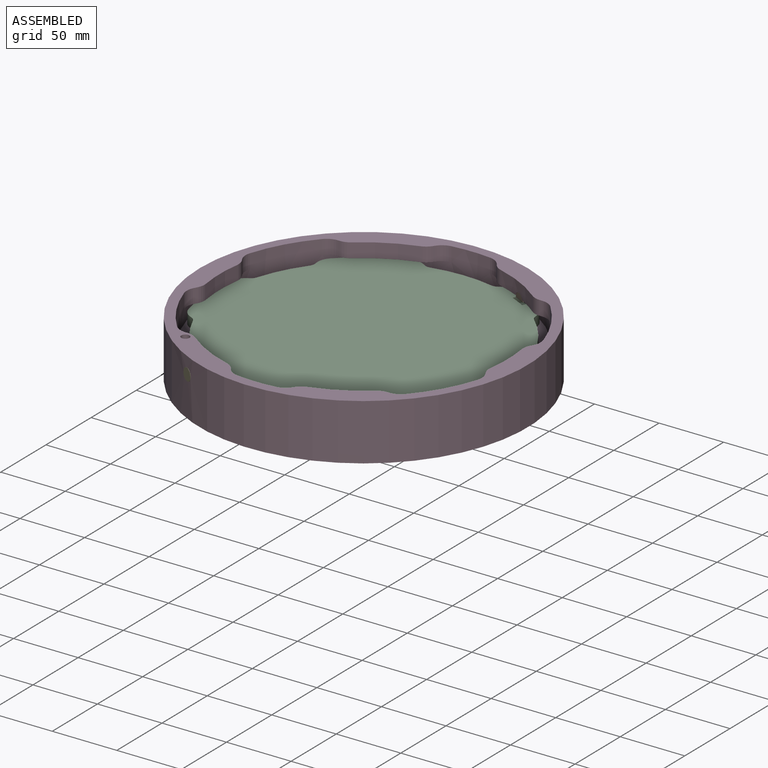
[diagram: assembled view]
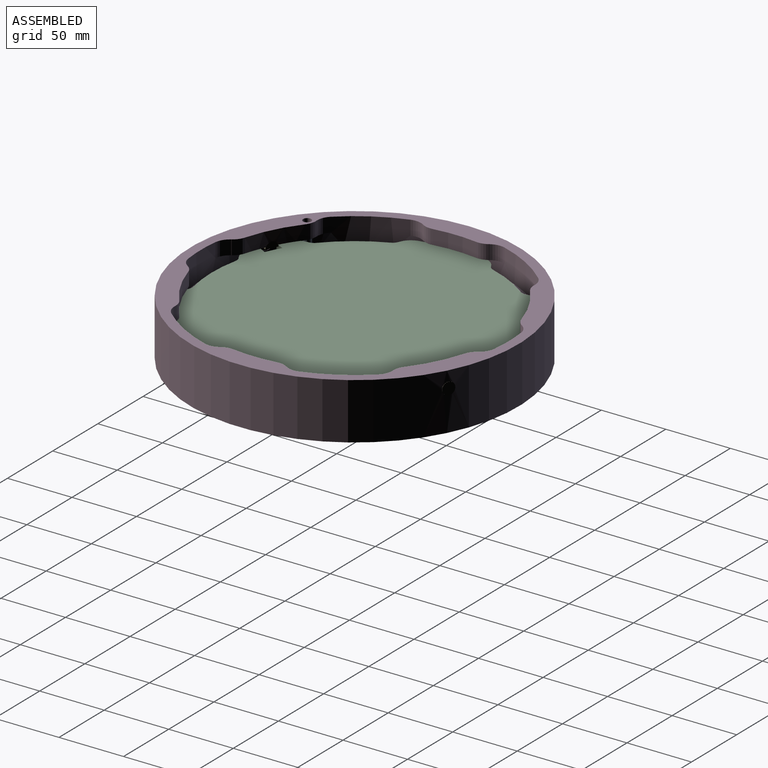
[diagram: assembled view, second angle]
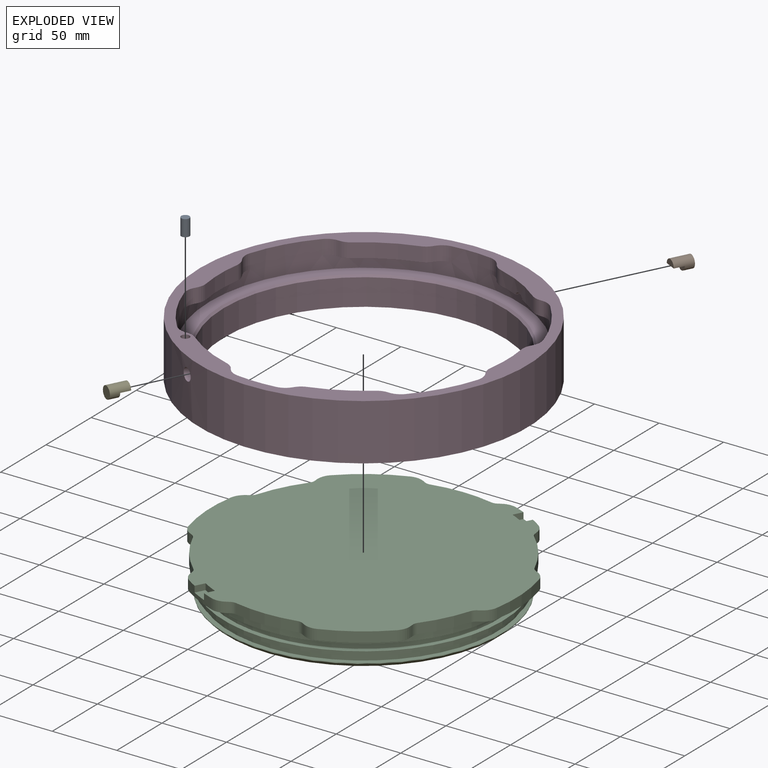
[diagram: exploded view]
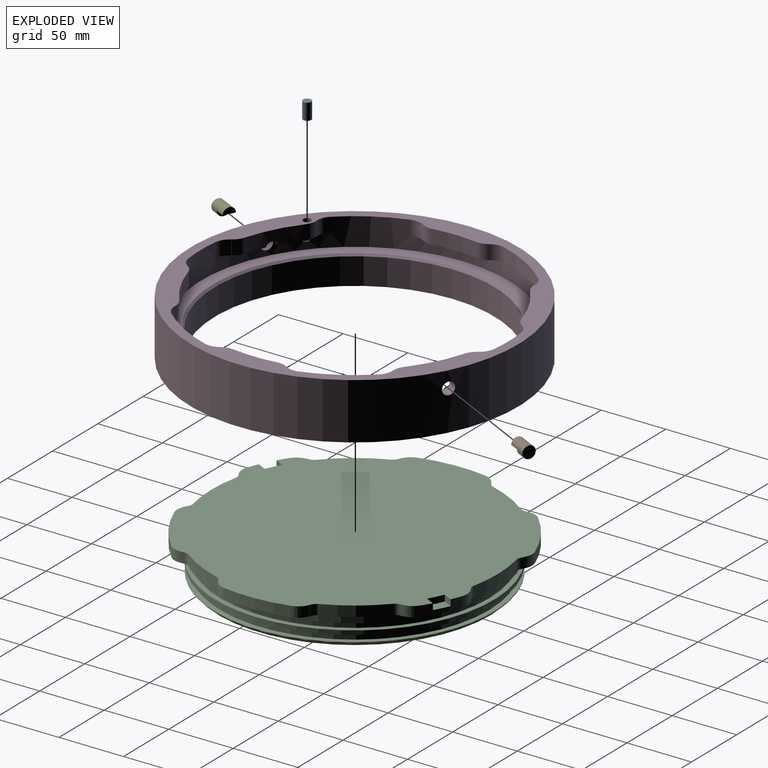
[diagram: exploded view, second angle]
ASSEMBLY  parts=5 mates=5
PART A: 3 faces, bbox 6.4x6.4x12.7 mm
  f0: cylinder r=3.17mm len=12.7mm, axis (0,0,-1), area 253.4mm2, adj f1,f2
  f1: plane 6.35x6.35mm, normal (0,0,1), area 31.7mm2, adj f0
  f2: plane 6.35x6.35mm, normal (0,0,-1), area 31.7mm2, adj f0
PART B: 5 faces, bbox 9.5x9.5x15.2 mm
  f0: cylinder r=4.76mm len=15.24mm, axis (0,0,-1), area 338.2mm2, adj f1,f2,f3,f4
  f1: plane 9.53x4.76mm, normal (0,0,1), area 35.6mm2, adj f0,f4
  f2: plane 9.53x9.53mm, normal (0,0,-1), area 71.3mm2, adj f0
  f3: plane 9.53x4.76mm, normal (0,0,1), area 35.6mm2, adj f0,f4
  f4: plane 9.53x7.87mm, normal (1,0,0), area 75mm2, adj f0,f1,f3
PART C: 71 faces, bbox 226.6x236.5x30.2 mm
  f0: plane 236.18x226.6mm, normal (0,0,1), area 41085.8mm2, adj f1,f2,f3,f4,f5,f19,f21,f22
  f1: cylinder r=118.26mm len=43.84mm, axis (0,0,-1), area 405mm2, adj f0,f18,f52,f54
  f2: cylinder r=118.26mm len=30.3mm, axis (0,0,-1), area 180.6mm2, adj f0,f18,f53,f55,f64,f65,f66
  f3: cylinder r=118.26mm len=43.84mm, axis (0,0,-1), area 405mm2, adj f0,f18,f56,f58
  f4: cylinder r=118.26mm len=43.84mm, axis (0,0,-1), area 405mm2, adj f0,f18,f57,f59
  f5: cylinder r=118.26mm len=30.3mm, axis (0,0,-1), area 180.6mm2, adj f0,f18,f60,f61,f67,f69,f70
  f6: plane 193.68x193.68mm, normal (0,0,-1), area 29460.3mm2, adj f7
  f7: cylinder r=96.84mm len=193.68mm, axis (0,0,-1), area 13522.8mm2, adj f6,f8
  f8: plane 210.82x210.82mm, normal (0,0,-1), area 5446.8mm2, adj f7,f20
  f9: cylinder r=107.95mm len=215.9mm, axis (0,0,-1), area 430.7mm2, adj f10,f20
  f10: plane 215.9x215.9mm, normal (0,0,1), area 2538.6mm2, adj f9,f11
  f11: cylinder r=104.14mm len=208.28mm, axis (0,0,-1), area 3324mm2, adj f10,f12
  f12: plane 215.9x215.9mm, normal (0,0,-1), area 2538.6mm2, adj f11,f13
  f13: cylinder r=107.95mm len=215.9mm, axis (0,0,-1), area 2153.5mm2, adj f12,f14
  f14: plane 215.9x215.9mm, normal (0,0,1), area 2538.6mm2, adj f13,f15
  f15: cylinder r=104.14mm len=208.28mm, axis (0,0,-1), area 3324mm2, adj f14,f16
  f16: plane 215.9x215.9mm, normal (0,0,-1), area 2538.6mm2, adj f15,f17
  f17: cylinder r=107.95mm len=215.9mm, axis (0,0,-1), area 3876.3mm2, adj f16,f18
  f18: plane 236.53x226.6mm, normal (0,0,-1), area 4676.3mm2, adj f1,f2,f3,f4,f5,f17,f19,f21
  f19: cylinder r=118.26mm len=43.84mm, axis (0,0,-1), area 405mm2, adj f0,f18,f51,f62
  f20: cone r=105.41mm half-angle=45deg, axis (0,0,1), area 2407.8mm2, adj f8,f9
  f21: plane 7.94x2.41mm, normal (0.03,1,0), area 19.1mm2, adj f0,f18,f50,f62
  f22: cylinder r=110.82mm len=41.73mm, axis (0,0,1), area 376.3mm2, adj f0,f18,f49,f50
  f23: plane 7.94x2.02mm, normal (-0.84,0.54,0), area 19.1mm2, adj f0,f18,f49,f61
  f24: plane 7.94x2.41mm, normal (-0.03,1,0), area 19.1mm2, adj f0,f18,f47,f59
  f25: cylinder r=110.82mm len=41.73mm, axis (0,0,1), area 376.3mm2, adj f0,f18,f47,f48
  f26: plane 7.94x2.02mm, normal (0.84,0.54,0), area 19.1mm2, adj f0,f18,f48,f60
  f27: plane 7.94x2.04mm, normal (0.85,0.53,0), area 19.1mm2, adj f0,f18,f46,f58
  f28: plane 7.94x2.04mm, normal (0.85,-0.53,0), area 19.1mm2, adj f0,f18,f45,f57
  f29: cylinder r=110.82mm len=37.56mm, axis (0,0,1), area 299.5mm2, adj f0,f18,f45,f46
  f30: plane 7.94x2.41mm, normal (-0.03,-1,0), area 19.1mm2, adj f0,f18,f44,f56
  f31: cylinder r=110.82mm len=41.73mm, axis (0,0,1), area 376.3mm2, adj f0,f18,f43,f44
  f32: plane 7.94x2.02mm, normal (0.84,-0.54,0), area 19.1mm2, adj f0,f18,f43,f55
  f33: plane 7.94x2.41mm, normal (0.03,-1,0), area 19.1mm2, adj f0,f18,f42,f54
  f34: cylinder r=110.82mm len=41.73mm, axis (0,0,1), area 376.3mm2, adj f0,f18,f41,f42
  f35: plane 7.94x2.02mm, normal (-0.84,-0.54,0), area 19.1mm2, adj f0,f18,f41,f53
  f36: plane 7.94x2.04mm, normal (-0.85,0.53,0), area 19.1mm2, adj f0,f18,f40,f52
  f37: plane 7.94x2.04mm, normal (-0.85,-0.53,0), area 19.1mm2, adj f0,f18,f39,f51
  f38: cylinder r=110.82mm len=37.56mm, axis (0,0,1), area 299.5mm2, adj f0,f18,f39,f40
  f39: cylinder r=6.35mm len=7.94mm, axis (0,0,1), area 36.7mm2, adj f0,f18,f37,f38
  f40: cylinder r=6.35mm len=7.94mm, axis (0,0,1), area 36.7mm2, adj f0,f18,f36,f38
  f41: cylinder r=6.35mm len=7.94mm, axis (0,0,1), area 36.7mm2, adj f0,f18,f34,f35
  f42: cylinder r=6.35mm len=7.94mm, axis (0,0,1), area 36.7mm2, adj f0,f18,f33,f34
  f43: cylinder r=6.35mm len=7.94mm, axis (0,0,1), area 36.7mm2, adj f0,f18,f31,f32
  f44: cylinder r=6.35mm len=7.94mm, axis (0,0,1), area 36.7mm2, adj f0,f18,f30,f31
  f45: cylinder r=6.35mm len=7.94mm, axis (0,0,1), area 36.7mm2, adj f0,f18,f28,f29
  f46: cylinder r=6.35mm len=7.94mm, axis (0,0,1), area 36.7mm2, adj f0,f18,f27,f29
  f47: cylinder r=6.35mm len=7.94mm, axis (0,0,1), area 36.7mm2, adj f0,f18,f24,f25
  f48: cylinder r=6.35mm len=7.94mm, axis (0,0,1), area 36.7mm2, adj f0,f18,f25,f26
  f49: cylinder r=6.35mm len=7.94mm, axis (0,0,1), area 36.7mm2, adj f0,f18,f22,f23
  f50: cylinder r=6.35mm len=7.94mm, axis (0,0,1), area 36.7mm2, adj f0,f18,f21,f22
  f51: cylinder r=12.7mm len=10.58mm, axis (0,0,-1), area 87.3mm2, adj f0,f18,f19,f37
  f52: cylinder r=12.7mm len=10.58mm, axis (0,0,-1), area 87.3mm2, adj f0,f1,f18,f36
  f53: cylinder r=12.7mm len=9.03mm, axis (0,0,-1), area 87.3mm2, adj f0,f2,f18,f35
  f54: cylinder r=12.7mm len=9.83mm, axis (0,0,-1), area 87.3mm2, adj f0,f1,f18,f33
  f55: cylinder r=12.7mm len=9.03mm, axis (0,0,-1), area 87.3mm2, adj f0,f2,f18,f32
  f56: cylinder r=12.7mm len=9.83mm, axis (0,0,-1), area 87.3mm2, adj f0,f3,f18,f30
  f57: cylinder r=12.7mm len=10.58mm, axis (0,0,-1), area 87.3mm2, adj f0,f4,f18,f28
  f58: cylinder r=12.7mm len=10.58mm, axis (0,0,-1), area 87.3mm2, adj f0,f3,f18,f27
  f59: cylinder r=12.7mm len=9.83mm, axis (0,0,-1), area 87.3mm2, adj f0,f4,f18,f24
  f60: cylinder r=12.7mm len=9.03mm, axis (0,0,-1), area 87.3mm2, adj f0,f5,f18,f26
  f61: cylinder r=12.7mm len=9.03mm, axis (0,0,-1), area 87.3mm2, adj f0,f5,f18,f23
  f62: cylinder r=12.7mm len=9.83mm, axis (0,0,-1), area 87.3mm2, adj f0,f18,f19,f21
  f63: cylinder r=110.39mm len=12.7mm, axis (0,0,1), area 60.5mm2, adj f0,f64,f65,f66
  f64: plane 7.89x4.76mm, normal (1,0,0), area 37.6mm2, adj f0,f2,f63,f66
  f65: plane 7.89x4.76mm, normal (-1,0,0), area 37.6mm2, adj f0,f2,f63,f66
  f66: plane 12.7x8.06mm, normal (0,0,1), area 100.1mm2, adj f2,f63,f64,f65
  f67: plane 7.89x4.76mm, normal (1,0,0), area 37.6mm2, adj f0,f5,f68,f70
  f68: cylinder r=110.39mm len=12.7mm, axis (0,0,1), area 60.5mm2, adj f0,f67,f69,f70
  f69: plane 7.89x4.76mm, normal (-1,0,0), area 37.6mm2, adj f0,f5,f68,f70
  f70: plane 12.7x8.06mm, normal (0,0,1), area 100.1mm2, adj f5,f67,f68,f69
PART D: 61 faces, bbox 254x254x43.7 mm
  f0: plane 35.13x17.06mm, normal (0,0,-1), area 203.2mm2, adj f3,f18,f21,f44,f55,f58
  f1: plane 33.78x24.01mm, normal (0,0,-1), area 218.9mm2, adj f10,f18,f28,f37,f50,f57
  f2: cylinder r=111.57mm len=38.22mm, axis (0,0,-1), area 481.9mm2, adj f4,f9,f53,f54
  f3: cylinder r=111.57mm len=38.22mm, axis (0,0,-1), area 461.1mm2, adj f0,f5,f9,f55,f56,f58
  f4: plane 73.36x38.19mm, normal (0,0,-1), area 492.3mm2, adj f2,f18,f22,f31,f34,f43,f53,f54
  f5: plane 33.78x24.01mm, normal (0,0,-1), area 190.3mm2, adj f3,f18,f25,f40,f56,f58,f59
  f6: cylinder r=111.57mm len=38.22mm, axis (0,0,-1), area 481.9mm2, adj f7,f9,f51,f52
  f7: plane 73.36x38.19mm, normal (0,0,-1), area 492.3mm2, adj f6,f18,f23,f32,f33,f42,f51,f52
  f8: plane 35.13x17.06mm, normal (0,0,-1), area 203.2mm2, adj f10,f18,f24,f41,f49,f57
  f9: plane 254x254mm, normal (0,0,1), area 8662.5mm2, adj f2,f3,f6,f10,f11,f16,f17,f18
  f10: cylinder r=111.57mm len=38.22mm, axis (0,0,-1), area 461.1mm2, adj f1,f8,f9,f49,f50,f57
  f11: cylinder r=111.57mm len=33.5mm, axis (0,0,-1), area 373.7mm2, adj f9,f13,f47,f48
  f12: plane 72.85x9.22mm, normal (0,0,-1), area 413.6mm2, adj f17,f18,f29,f30,f35,f36,f45,f46
  f13: plane 72.85x9.22mm, normal (0,0,-1), area 413.6mm2, adj f11,f18,f26,f27,f38,f39,f47,f48
  f14: cylinder r=108.33mm len=216.66mm, axis (0,0,-1), area 14090.4mm2, adj f15,f20
  f15: plane 254x254mm, normal (0,0,-1), area 13802.3mm2, adj f14,f16
  f16: cylinder r=127mm len=254mm, axis (0,0,-1), area 34687.7mm2, adj f9,f15,f57,f58
  f17: cylinder r=111.57mm len=33.5mm, axis (0,0,-1), area 373.7mm2, adj f9,f12,f45,f46
  f18: cylinder r=119.38mm len=238.76mm, axis (0,0,-1), area 10549mm2, adj f0,f1,f4,f5,f7,f8,f9,f12
  f19: plane 238.76x238.76mm, normal (0,0,1), area 6859.6mm2, adj f18,f20
  f20: cone r=109.85mm half-angle=45deg, axis (0,0,1), area 1477.3mm2, adj f14,f19
  f21: plane 11.11x0.43mm, normal (0.84,0.54,0), area 5.7mm2, adj f0,f9,f44,f55
  f22: plane 11.11x0.43mm, normal (-0.84,0.54,0), area 5.7mm2, adj f4,f9,f43,f53
  f23: plane 11.11x0.43mm, normal (0.84,-0.54,0), area 5.7mm2, adj f7,f9,f42,f51
  f24: plane 11.11x0.43mm, normal (-0.84,-0.54,0), area 5.7mm2, adj f8,f9,f41,f49
  f25: plane 11.11x0.51mm, normal (-0.03,1,0), area 5.7mm2, adj f5,f9,f40,f56
  f26: plane 11.11x0.43mm, normal (0.85,-0.53,0), area 5.7mm2, adj f9,f13,f39,f47
  f27: plane 11.11x0.43mm, normal (0.85,0.53,0), area 5.7mm2, adj f9,f13,f38,f48
  f28: plane 11.11x0.51mm, normal (0.03,-1,0), area 5.7mm2, adj f1,f9,f37,f50
  f29: plane 11.11x0.43mm, normal (-0.85,0.53,0), area 5.7mm2, adj f9,f12,f36,f45
  f30: plane 11.11x0.43mm, normal (-0.85,-0.53,0), area 5.7mm2, adj f9,f12,f35,f46
  f31: plane 11.11x0.51mm, normal (0.03,1,0), area 5.7mm2, adj f4,f9,f34,f54
  f32: plane 11.11x0.51mm, normal (-0.03,-1,0), area 5.7mm2, adj f7,f9,f33,f52
  f33: cylinder r=12.7mm len=11.11mm, axis (0,0,-1), area 122.6mm2, adj f7,f9,f18,f32
  f34: cylinder r=12.7mm len=11.11mm, axis (0,0,-1), area 122.6mm2, adj f4,f9,f18,f31
  f35: cylinder r=12.7mm len=11.11mm, axis (0,0,-1), area 122.6mm2, adj f9,f12,f18,f30
  f36: cylinder r=12.7mm len=11.11mm, axis (0,0,-1), area 122.6mm2, adj f9,f12,f18,f29
  f37: cylinder r=12.7mm len=11.11mm, axis (0,0,-1), area 122.6mm2, adj f1,f9,f18,f28
  f38: cylinder r=12.7mm len=11.11mm, axis (0,0,-1), area 122.6mm2, adj f9,f13,f18,f27
  f39: cylinder r=12.7mm len=11.11mm, axis (0,0,-1), area 122.6mm2, adj f9,f13,f18,f26
  f40: cylinder r=12.7mm len=11.11mm, axis (0,0,-1), area 122.6mm2, adj f5,f9,f18,f25
  f41: cylinder r=12.7mm len=11.11mm, axis (0,0,-1), area 122.6mm2, adj f8,f9,f18,f24
  f42: cylinder r=12.7mm len=11.11mm, axis (0,0,-1), area 122.6mm2, adj f7,f9,f18,f23
  f43: cylinder r=12.7mm len=11.11mm, axis (0,0,-1), area 122.6mm2, adj f4,f9,f18,f22
  f44: cylinder r=12.7mm len=11.11mm, axis (0,0,-1), area 122.6mm2, adj f0,f9,f18,f21
  f45: cylinder r=12.7mm len=11.11mm, axis (0,0,-1), area 100.1mm2, adj f9,f12,f17,f29
  f46: cylinder r=12.7mm len=11.11mm, axis (0,0,-1), area 100.1mm2, adj f9,f12,f17,f30
  f47: cylinder r=12.7mm len=11.11mm, axis (0,0,-1), area 100.1mm2, adj f9,f11,f13,f26
  f48: cylinder r=12.7mm len=11.11mm, axis (0,0,-1), area 100.1mm2, adj f9,f11,f13,f27
  f49: cylinder r=12.7mm len=11.11mm, axis (0,0,-1), area 100.1mm2, adj f8,f9,f10,f24
  f50: cylinder r=12.7mm len=11.11mm, axis (0,0,-1), area 100.1mm2, adj f1,f9,f10,f28
  f51: cylinder r=12.7mm len=11.11mm, axis (0,0,-1), area 100.1mm2, adj f6,f7,f9,f23
  f52: cylinder r=12.7mm len=11.11mm, axis (0,0,-1), area 100.1mm2, adj f6,f7,f9,f32
  f53: cylinder r=12.7mm len=11.11mm, axis (0,0,-1), area 100.1mm2, adj f2,f4,f9,f22
  f54: cylinder r=12.7mm len=11.11mm, axis (0,0,-1), area 100.1mm2, adj f2,f4,f9,f31
  f55: cylinder r=12.7mm len=11.11mm, axis (0,0,-1), area 100.1mm2, adj f0,f3,f9,f21
  f56: cylinder r=12.7mm len=11.11mm, axis (0,0,-1), area 100.1mm2, adj f3,f5,f9,f25
  f57: cylinder r=4.76mm len=18.15mm, axis (0.45,0.89,0), area 319.7mm2, adj f1,f8,f10,f16,f18
  f58: cylinder r=4.76mm len=18.15mm, axis (0.45,0.89,0), area 319.7mm2, adj f0,f3,f5,f16,f18
  f59: cylinder r=3.17mm len=15.88mm, axis (0,0,1), area 246.3mm2, adj f5,f9,f18,f60
  f60: plane 3.53x2.99mm, normal (0,0,1), area 3.1mm2, adj f18,f59
PART E: same geometry as B
PLACE A t=(-123.47,-69.2,26.5)mm
PLACE B rot(axis=(0.65,0.4,-0.65),136.6deg) t=(9.67,133.7,29.55)mm
PLACE C rot(axis=(0,0,-1),27.1deg) t=(-48.03,20.46,20.82)mm
PLACE D t=(-48.03,20.46,-1.4)mm fixed
PLACE E rot(axis=(-0.46,0.76,0.46),105.8deg) t=(-105.73,-92.78,29.55)mm
MATE fastened E.f0 <-> D.f57  axis (-0.45,-0.89,0) through (-105.73,-92.78,29.55)mm
MATE cylindrical C.f1 <-> D.f2  axis (0,0,-1) through (-48.03,20.46,20.82)mm
MATE planar C.f1 <-> D.f2  axis (0,0,-1) through (-48.03,20.46,20.82)mm
MATE fastened D.f57 <-> B.f0  axis (0.45,0.89,0) through (9.67,133.7,29.55)mm
MATE fastened A.f0 <-> D.f59  axis (0,0,1) through (-123.47,-69.2,39.2)mm
